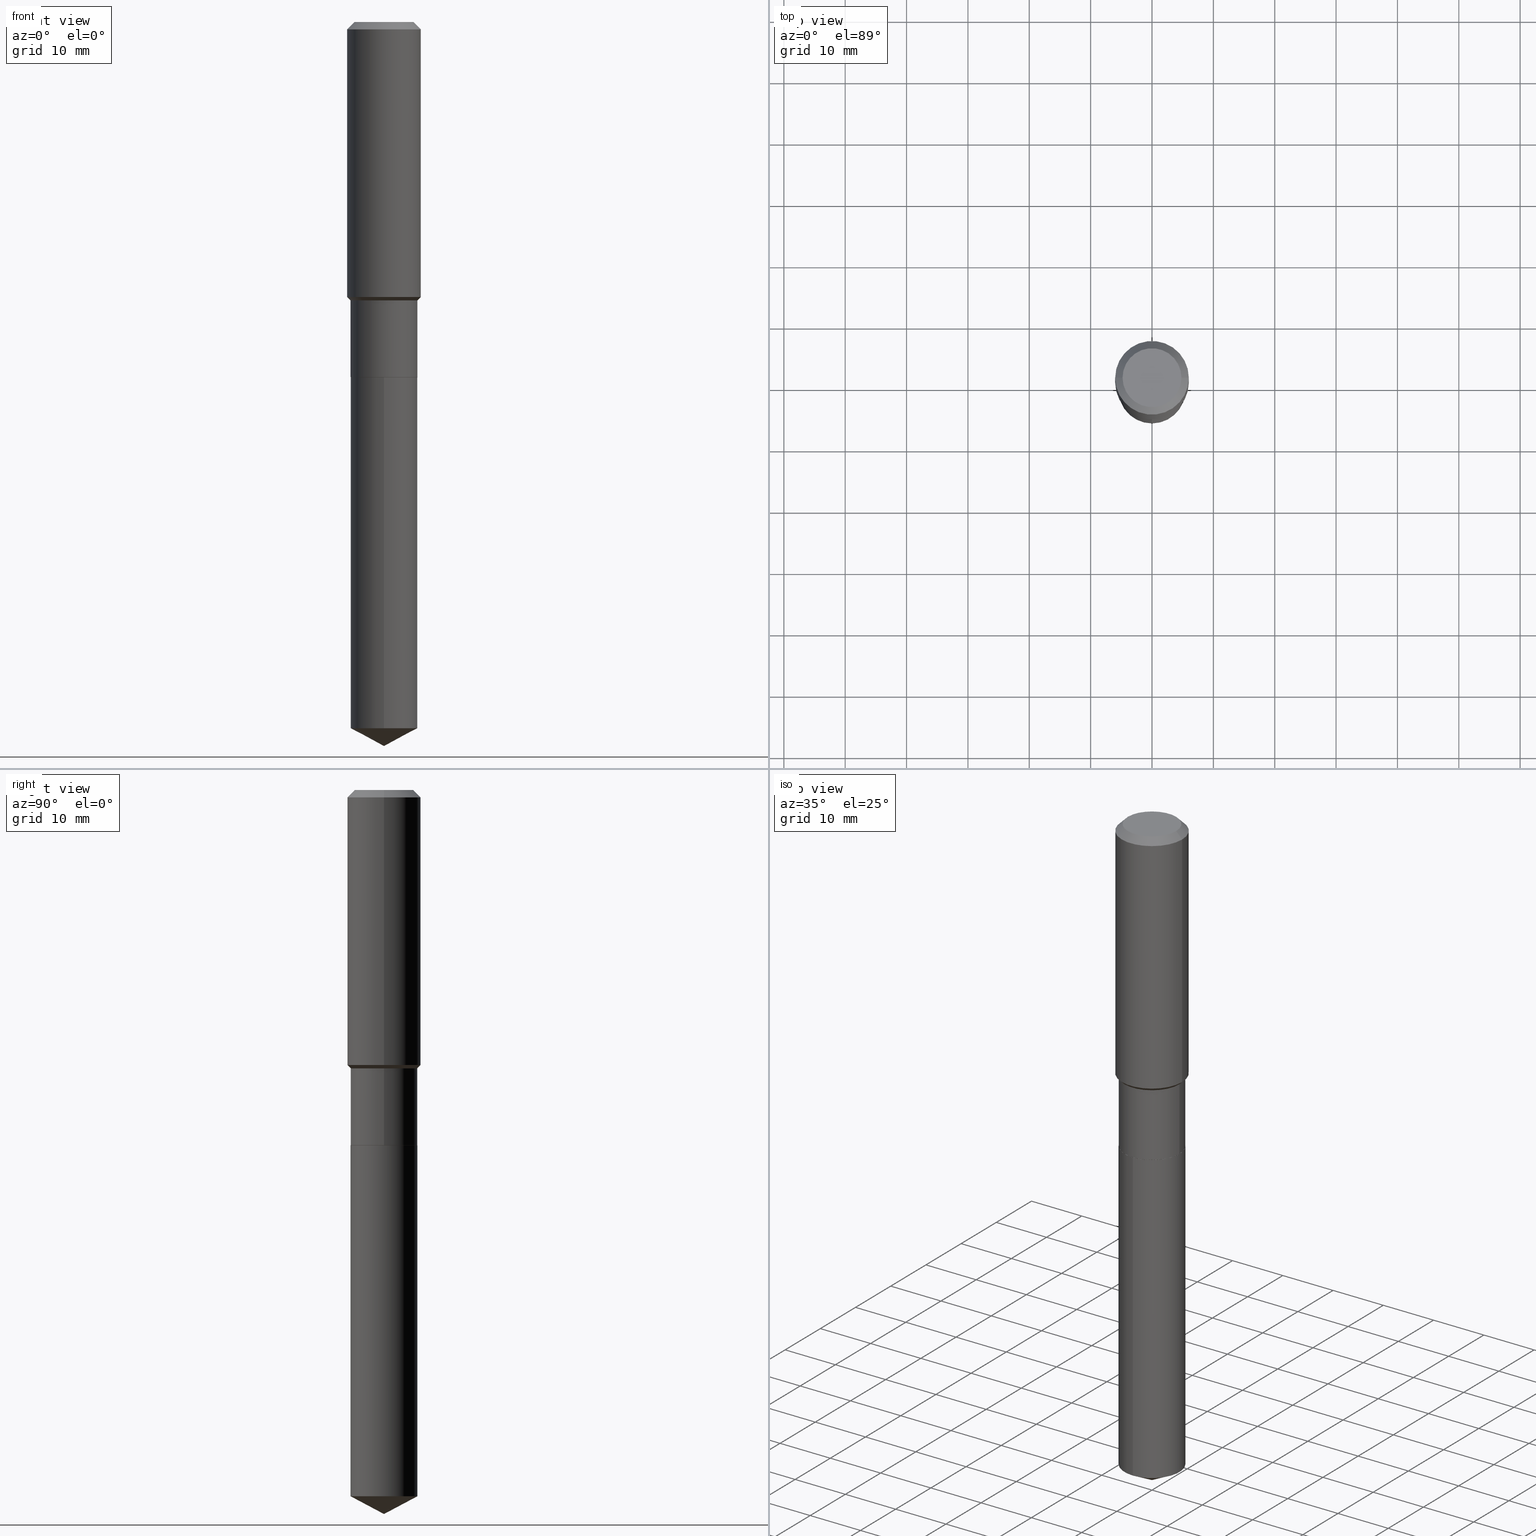
[diagram: canonical four-view strip — front | top / right | iso, engineering-drawing reading convention]
A machine part, canonical four-view strip (front | top / right | iso — engineering-drawing reading convention). The complete STEP part file that produces these views, byte-faithful:
ISO-10303-21;
HEADER;
FILE_DESCRIPTION (( 'STEP AP203' ),
    '1' );
FILE_NAME ('64879.STEP',
    '2024-04-24T19:28:28',
    ( '' ),
    ( '' ),
    'SwSTEP 2.0',
    'SolidWorks 2023',
    '' );
FILE_SCHEMA (( 'CONFIG_CONTROL_DESIGN' ));
ENDSEC;

DATA;
#1 = CARTESIAN_POINT ( 'NONE',  ( -9.427742298522546243E-47, 1.346031739168365344E-32, 3.855188123715862256E-18 ) ) ;
#2 = AXIS2_PLACEMENT_3D ( 'NONE', #235, #391, #195 ) ;
#3 = AXIS2_PLACEMENT_3D ( 'NONE', #178, #414, #329 ) ;
#4 = FACE_OUTER_BOUND ( 'NONE', #307, .T. ) ;
#5 = ORIENTED_EDGE ( 'NONE', *, *, #172, .T. ) ;
#6 = CC_DESIGN_PERSON_AND_ORGANIZATION_ASSIGNMENT ( #64, #370, ( #67 ) ) ;
#7 = ORIENTED_EDGE ( 'NONE', *, *, #442, .T. ) ;
#8 = FACE_OUTER_BOUND ( 'NONE', #317, .T. ) ;
#9 = APPROVAL_ROLE ( '' ) ;
#10 = VERTEX_POINT ( 'NONE', #303 ) ;
#11 = CIRCLE ( 'NONE', #153, 0.2140499999999999903 ) ;
#12 = DIRECTION ( 'NONE',  ( -2.445464104215688479E-29, 3.491488072331014766E-15, 1.000000000000000000 ) ) ;
#13 = LINE ( 'NONE', #211, #296 ) ;
#14 = ORIENTED_EDGE ( 'NONE', *, *, #290, .F. ) ;
#15 = PRODUCT_DEFINITION_SHAPE ( 'NONE', 'NONE',  #454 ) ;
#16 = CYLINDRICAL_SURFACE ( 'NONE', #308, 0.2362000000000001043 ) ;
#17 = CYLINDRICAL_SURFACE ( 'NONE', #269, 0.2145499999999999907 ) ;
#18 = ORIENTED_EDGE ( 'NONE', *, *, #480, .F. ) ;
#19 = CARTESIAN_POINT ( 'NONE',  ( 4.367607287846652814E-29, -6.235785671173856083E-15, -1.785999999999999366 ) ) ;
#20 = LINE ( 'NONE', #256, #262 ) ;
#21 = AXIS2_PLACEMENT_3D ( 'NONE', #239, #396, #51 ) ;
#22 = AXIS2_PLACEMENT_3D ( 'NONE', #162, #93, #397 ) ;
#23 = EDGE_CURVE ( 'NONE', #43, #90, #182, .T. ) ;
#24 = CARTESIAN_POINT ( 'NONE',  ( 0.2145499999999999907, -9.455280613721116027E-15, -2.278999999999999471 ) ) ;
#25 = CARTESIAN_POINT ( 'NONE',  ( 5.574446143699018056E-29, -7.958831711892947948E-15, -2.279499999999999638 ) ) ;
#26 = LINE ( 'NONE', #212, #302 ) ;
#27 = DIRECTION ( 'NONE',  ( 0.7071067811866199593, -2.468850131083015945E-15, 0.7071067811864750752 ) ) ;
#28 = PERSON_AND_ORGANIZATION ( #258, #136 ) ;
#29 = COORDINATED_UNIVERSAL_TIME_OFFSET ( 5, 0, .BEHIND. ) ;
#30 = CARTESIAN_POINT ( 'NONE',  ( 0.2145499999999999352, -7.733980313671444089E-15, -1.785999999999999366 ) ) ;
#31 = APPLICATION_PROTOCOL_DEFINITION ( 'international standard', 'config_control_design', 1994, #222 ) ;
#32 = EDGE_LOOP ( 'NONE', ( #417, #87, #351, #114 ) ) ;
#33 = CARTESIAN_POINT ( 'NONE',  ( 0.000000000000000000, 0.000000000000000000, 0.000000000000000000 ) ) ;
#34 = AXIS2_PLACEMENT_3D ( 'NONE', #46, #12, #123 ) ;
#35 = DIRECTION ( 'NONE',  ( -2.445464104215688479E-29, 3.491488072331014766E-15, 1.000000000000000000 ) ) ;
#36 = ADVANCED_FACE ( 'NONE', ( #76 ), #458, .F. ) ;
#37 = CARTESIAN_POINT ( 'NONE',  ( 4.314662888192743703E-29, -6.160195100187900640E-15, -1.764349999999999197 ) ) ;
#38 = CARTESIAN_POINT ( 'NONE',  ( 5.574446143699018056E-29, -7.958831711892947948E-15, -2.279499999999999638 ) ) ;
#39 = COORDINATED_UNIVERSAL_TIME_OFFSET ( 5, 0, .BEHIND. ) ;
#40 = AXIS2_PLACEMENT_3D ( 'NONE', #437, #92, #58 ) ;
#41 = ADVANCED_FACE ( 'NONE', ( #4 ), #215, .T. ) ;
#42 = DIRECTION ( 'NONE',  ( 1.000000000000000000, -6.982962677686266711E-15, 4.876185090822587894E-29 ) ) ;
#43 = VERTEX_POINT ( 'NONE', #225 ) ;
#44 = DIRECTION ( 'NONE',  ( -6.165590087286839185E-15, -0.8829475928589269884, 0.4694715627858906393 ) ) ;
#45 = ORIENTED_EDGE ( 'NONE', *, *, #442, .F. ) ;
#46 = CARTESIAN_POINT ( 'NONE',  ( 5.574446143699018056E-29, -7.958831711892947948E-15, -2.279499999999999638 ) ) ;
#47 = DIRECTION ( 'NONE',  ( -2.445468806185136877E-29, 3.491481338843145188E-15, 1.000000000000000000 ) ) ;
#48 = ORIENTED_EDGE ( 'NONE', *, *, #489, .F. ) ;
#49 = AXIS2_PLACEMENT_3D ( 'NONE', #205, #283, #321 ) ;
#50 =( GEOMETRIC_REPRESENTATION_CONTEXT ( 3 ) GLOBAL_UNCERTAINTY_ASSIGNED_CONTEXT ( ( #402 ) ) GLOBAL_UNIT_ASSIGNED_CONTEXT ( ( #488, #253, #447 ) ) REPRESENTATION_CONTEXT ( 'NONE', 'WORKASPACE' ) );
#51 = DIRECTION ( 'NONE',  ( -6.982962677686266711E-15, -1.000000000000000000, 3.819876010716751118E-15 ) ) ;
#52 = DIRECTION ( 'NONE',  ( -2.445468806185136877E-29, 3.491481338843145188E-15, 1.000000000000000000 ) ) ;
#53 = EDGE_LOOP ( 'NONE', ( #18, #227, #378, #273 ) ) ;
#54 = LINE ( 'NONE', #477, #464 ) ;
#55 = EDGE_CURVE ( 'NONE', #419, #80, #379, .T. ) ;
#56 = DIRECTION ( 'NONE',  ( 1.000000000000000000, -6.982962677686266711E-15, 4.876185090822587894E-29 ) ) ;
#57 = ADVANCED_FACE ( 'NONE', ( #259 ), #111, .F. ) ;
#58 = DIRECTION ( 'NONE',  ( 1.000000000000000000, -6.982962677686266711E-15, 0.000000000000000000 ) ) ;
#59 = LINE ( 'NONE', #275, #353 ) ;
#60 = VECTOR ( 'NONE', #197, 39.37007874015748143 ) ;
#61 = PRODUCT_RELATED_PRODUCT_CATEGORY ( 'detail', '', ( #158 ) ) ;
#62 = CARTESIAN_POINT ( 'NONE',  ( 0.000000000000000000, 0.000000000000000000, 0.000000000000000000 ) ) ;
#63 = DIRECTION ( 'NONE',  ( 1.000000000000000000, -6.982962677686266711E-15, 0.000000000000000000 ) ) ;
#64 = PERSON_AND_ORGANIZATION ( #258, #136 ) ;
#65 = AXIS2_PLACEMENT_3D ( 'NONE', #150, #306, #223 ) ;
#66 = AXIS2_PLACEMENT_3D ( 'NONE', #272, #152, #157 ) ;
#67 = SECURITY_CLASSIFICATION ( '', '', #409 ) ;
#68 = APPROVAL_PERSON_ORGANIZATION ( #333, #384, #183 ) ;
#69 = FACE_OUTER_BOUND ( 'NONE', #237, .T. ) ;
#70 = APPROVAL_STATUS ( 'not_yet_approved' ) ;
#71 = EDGE_CURVE ( 'NONE', #80, #419, #334, .T. ) ;
#72 = CARTESIAN_POINT ( 'NONE',  ( -1.498194642497477368E-15, -0.2145500000000157836, -4.531621741437029449 ) ) ;
#73 = AXIS2_PLACEMENT_3D ( 'NONE', #62, #374, #408 ) ;
#74 = ORIENTED_EDGE ( 'NONE', *, *, #71, .T. ) ;
#75 = VERTEX_POINT ( 'NONE', #187 ) ;
#76 = FACE_OUTER_BOUND ( 'NONE', #77, .T. ) ;
#77 = EDGE_LOOP ( 'NONE', ( #394, #427 ) ) ;
#78 = CALENDAR_DATE ( 2024, 24, 4 ) ;
#79 = CIRCLE ( 'NONE', #418, 0.1889600000000000168 ) ;
#80 = VERTEX_POINT ( 'NONE', #299 ) ;
#81 = CC_DESIGN_APPROVAL ( #384, ( #454 ) ) ;
#82 = LINE ( 'NONE', #200, #330 ) ;
#83 = VERTEX_POINT ( 'NONE', #72 ) ;
#84 = EDGE_CURVE ( 'NONE', #218, #436, #481, .T. ) ;
#85 = EDGE_CURVE ( 'NONE', #90, #490, #145, .T. ) ;
#86 = DIRECTION ( 'NONE',  ( 1.000000000000000000, -6.982962677686269077E-15, 0.000000000000000000 ) ) ;
#87 = ORIENTED_EDGE ( 'NONE', *, *, #238, .T. ) ;
#88 = CARTESIAN_POINT ( 'NONE',  ( 0.2145499999999999352, -7.733980313671444089E-15, -1.785999999999999366 ) ) ;
#89 = LINE ( 'NONE', #170, #457 ) ;
#90 = VERTEX_POINT ( 'NONE', #381 ) ;
#91 = CIRCLE ( 'NONE', #147, 0.2140499999999999903 ) ;
#92 = DIRECTION ( 'NONE',  ( -2.445468806185136597E-29, 3.491481338843145583E-15, 1.000000000000000000 ) ) ;
#93 = DIRECTION ( 'NONE',  ( -2.445464104215688479E-29, 3.491488072331014766E-15, 1.000000000000000000 ) ) ;
#94 = FACE_OUTER_BOUND ( 'NONE', #423, .T. ) ;
#95 = FACE_OUTER_BOUND ( 'NONE', #32, .T. ) ;
#96 = CC_DESIGN_DATE_AND_TIME_ASSIGNMENT ( #257, #252, ( #454 ) ) ;
#97 = CYLINDRICAL_SURFACE ( 'NONE', #73, 0.2145499999999999630 ) ;
#98 = CARTESIAN_POINT ( 'NONE',  ( 1.155239464041865506E-30, -1.649375784469511859E-16, -0.04724000000000028177 ) ) ;
#99 = AXIS2_PLACEMENT_3D ( 'NONE', #247, #128, #403 ) ;
#100 = PERSON_AND_ORGANIZATION ( #258, #136 ) ;
#101 = ADVANCED_FACE ( 'NONE', ( #339 ), #166, .T. ) ;
#102 = MECHANICAL_CONTEXT ( 'NONE', #222, 'mechanical' ) ;
#103 = DIRECTION ( 'NONE',  ( 2.438088387897960049E-29, -3.491481338843145188E-15, -1.000000000000000000 ) ) ;
#104 = AXIS2_PLACEMENT_3D ( 'NONE', #19, #475, #363 ) ;
#105 = VECTOR ( 'NONE', #431, 39.37007874015748143 ) ;
#106 = PERSON_AND_ORGANIZATION_ROLE ( 'creator' ) ;
#107 = PERSON_AND_ORGANIZATION ( #258, #136 ) ;
#108 = CARTESIAN_POINT ( 'NONE',  ( 5.574446143699018056E-29, -7.958831711892947948E-15, -2.279499999999999638 ) ) ;
#109 = ORIENTED_EDGE ( 'NONE', *, *, #290, .T. ) ;
#110 = VERTEX_POINT ( 'NONE', #357 ) ;
#111 = PLANE ( 'NONE',  #240 ) ;
#112 = ORIENTED_EDGE ( 'NONE', *, *, #85, .T. ) ;
#113 = ADVANCED_FACE ( 'NONE', ( #161 ), #322, .T. ) ;
#114 = ORIENTED_EDGE ( 'NONE', *, *, #155, .F. ) ;
#115 = AXIS2_PLACEMENT_3D ( 'NONE', #316, #469, #121 ) ;
#116 = ORIENTED_EDGE ( 'NONE', *, *, #342, .F. ) ;
#117 = CC_DESIGN_APPROVAL ( #224, ( #67 ) ) ;
#118 = FACE_OUTER_BOUND ( 'NONE', #163, .T. ) ;
#119 = EDGE_LOOP ( 'NONE', ( #146, #320 ) ) ;
#120 = CARTESIAN_POINT ( 'NONE',  ( -0.2361999999999999933, -1.484264397452068200E-15, -0.04724000000000028177 ) ) ;
#121 = DIRECTION ( 'NONE',  ( -6.982962677686266711E-15, -1.000000000000000000, 2.546584007144500745E-15 ) ) ;
#122 = VERTEX_POINT ( 'NONE', #430 ) ;
#123 = DIRECTION ( 'NONE',  ( -6.982962677686266711E-15, -1.000000000000000000, 3.819876010716751118E-15 ) ) ;
#124 = DIRECTION ( 'NONE',  ( -2.445464104215688479E-29, 3.491488072331014766E-15, 1.000000000000000000 ) ) ;
#125 = ORIENTED_EDGE ( 'NONE', *, *, #484, .F. ) ;
#126 = CONICAL_SURFACE ( 'NONE', #2, 0.2145499999999999352, 0.7853981633974473908 ) ;
#127 = EDGE_CURVE ( 'NONE', #10, #75, #254, .T. ) ;
#128 = DIRECTION ( 'NONE',  ( 2.445468806185136597E-29, -3.491481338843145583E-15, -1.000000000000000000 ) ) ;
#129 = DIRECTION ( 'NONE',  ( -6.982962677686266711E-15, -1.000000000000000000, 3.819876010716751118E-15 ) ) ;
#130 = DIRECTION ( 'NONE',  ( -2.445468806185136597E-29, 3.491481338843145583E-15, 1.000000000000000000 ) ) ;
#131 = CYLINDRICAL_SURFACE ( 'NONE', #433, 0.2145499999999999630 ) ;
#132 = DIRECTION ( 'NONE',  ( -1.000000000000000000, 6.982962677686265922E-15, -4.876176775795935793E-29 ) ) ;
#133 = CARTESIAN_POINT ( 'NONE',  ( 5.574446143699018056E-29, -7.958831711892947948E-15, -2.279499999999999638 ) ) ;
#134 = VECTOR ( 'NONE', #487, 39.37007874015748143 ) ;
#135 = CONICAL_SURFACE ( 'NONE', #22, 74.04434902938382379, 1.082104136236488046 ) ;
#136 = ORGANIZATION ( 'UNSPECIFIED', 'UNSPECIFIED', '' ) ;
#137 = CALENDAR_DATE ( 2024, 24, 4 ) ;
#138 = EDGE_CURVE ( 'NONE', #474, #83, #466, .T. ) ;
#139 = AXIS2_PLACEMENT_3D ( 'NONE', #318, #130, #472 ) ;
#140 = VECTOR ( 'NONE', #204, 39.37007874015748143 ) ;
#141 = APPLICATION_PROTOCOL_DEFINITION ( 'international standard', 'config_control_design', 1994, #446 ) ;
#142 = EDGE_CURVE ( 'NONE', #490, #90, #448, .T. ) ;
#143 = CARTESIAN_POINT ( 'NONE',  ( 4.314662888192743703E-29, -6.160195100187900640E-15, -1.764349999999999197 ) ) ;
#144 = CARTESIAN_POINT ( 'NONE',  ( -0.2145499999999999630, 1.524469439573294686E-15, -1.055357523614189967E-29 ) ) ;
#145 = CIRCLE ( 'NONE', #65, 0.2145499999999999352 ) ;
#146 = ORIENTED_EDGE ( 'NONE', *, *, #127, .T. ) ;
#147 = AXIS2_PLACEMENT_3D ( 'NONE', #25, #478, #63 ) ;
#148 = DIRECTION ( 'NONE',  ( -2.445468806185136597E-29, 3.491481338843145583E-15, 1.000000000000000000 ) ) ;
#149 = VERTEX_POINT ( 'NONE', #24 ) ;
#150 = CARTESIAN_POINT ( 'NONE',  ( 4.367607287846652814E-29, -6.235785671173856083E-15, -1.785999999999999366 ) ) ;
#151 = EDGE_LOOP ( 'NONE', ( #234, #202, #388, #345 ) ) ;
#152 = DIRECTION ( 'NONE',  ( -2.445468806185136597E-29, 3.491481338843145583E-15, 1.000000000000000000 ) ) ;
#153 = AXIS2_PLACEMENT_3D ( 'NONE', #133, #279, #325 ) ;
#154 = ORIENTED_EDGE ( 'NONE', *, *, #55, .F. ) ;
#155 = EDGE_CURVE ( 'NONE', #75, #10, #209, .T. ) ;
#156 = LOCAL_TIME ( 15, 28, 28.00000000000000000, #39 ) ;
#157 = DIRECTION ( 'NONE',  ( 1.000000000000000000, -6.982962677686266711E-15, 4.876176775795935793E-29 ) ) ;
#158 = PRODUCT ( '64879', '64879', '', ( #102 ) ) ;
#159 = CARTESIAN_POINT ( 'NONE',  ( -1.498194642497532588E-15, -0.2145500000000079566, -2.279499999999998749 ) ) ;
#160 = ORIENTED_EDGE ( 'NONE', *, *, #471, .T. ) ;
#161 = FACE_OUTER_BOUND ( 'NONE', #398, .T. ) ;
#162 = CARTESIAN_POINT ( 'NONE',  ( -8.491721103210614616E-28, 1.212397695393501143E-13, 34.72437874015748349 ) ) ;
#163 = EDGE_LOOP ( 'NONE', ( #305, #191, #192, #48 ) ) ;
#164 = DIRECTION ( 'NONE',  ( 1.000000000000000000, -6.982962677686266711E-15, 4.876176775795935793E-29 ) ) ;
#165 = DIRECTION ( 'NONE',  ( -2.445464104215688479E-29, 3.491488072331014766E-15, 1.000000000000000000 ) ) ;
#166 = CONICAL_SURFACE ( 'NONE', #410, 74.04434902938382379, 1.082104136236488046 ) ;
#167 = AXIS2_PLACEMENT_3D ( 'NONE', #476, #165, #444 ) ;
#168 = LOCAL_TIME ( 15, 28, 28.00000000000000000, #289 ) ;
#169 = LINE ( 'NONE', #88, #450 ) ;
#170 = CARTESIAN_POINT ( 'NONE',  ( 0.2362000000000001043, -1.649375784469496920E-15, 1.151752954443000508E-29 ) ) ;
#171 = DIRECTION ( 'NONE',  ( 1.000000000000000000, -6.982962677686269077E-15, 0.000000000000000000 ) ) ;
#172 = EDGE_CURVE ( 'NONE', #490, #80, #169, .T. ) ;
#173 = CARTESIAN_POINT ( 'NONE',  ( -4.713871149261273121E-47, 6.730158695841826722E-33, 1.927594061857931128E-18 ) ) ;
#174 = PERSON_AND_ORGANIZATION_ROLE ( 'design_supplier' ) ;
#175 = CIRCLE ( 'NONE', #343, 0.2145499999999999907 ) ;
#176 = PLANE ( 'NONE',  #188 ) ;
#177 = PERSON_AND_ORGANIZATION ( #258, #136 ) ;
#178 = CARTESIAN_POINT ( 'NONE',  ( 1.155239464041865506E-30, -1.649375784469511859E-16, -0.04724000000000028177 ) ) ;
#179 = EDGE_CURVE ( 'NONE', #218, #230, #54, .T. ) ;
#180 = DATE_AND_TIME ( #137, #331 ) ;
#181 = ORIENTED_EDGE ( 'NONE', *, *, #238, .F. ) ;
#182 = LINE ( 'NONE', #144, #134 ) ;
#183 = APPROVAL_ROLE ( '' ) ;
#184 = EDGE_LOOP ( 'NONE', ( #74, #160, #452, #312 ) ) ;
#185 = CALENDAR_DATE ( 2024, 24, 4 ) ;
#186 = APPROVAL ( #70, 'UNSPECIFIED' ) ;
#187 = CARTESIAN_POINT ( 'NONE',  ( 1.524469439573405915E-15, 0.2145499999999920249, -2.279500000000000526 ) ) ;
#188 = AXIS2_PLACEMENT_3D ( 'NONE', #173, #103, #132 ) ;
#189 = EDGE_LOOP ( 'NONE', ( #415, #426 ) ) ;
#190 = APPROVAL_STATUS ( 'not_yet_approved' ) ;
#191 = ORIENTED_EDGE ( 'NONE', *, *, #55, .T. ) ;
#192 = ORIENTED_EDGE ( 'NONE', *, *, #392, .T. ) ;
#193 = FACE_OUTER_BOUND ( 'NONE', #184, .T. ) ;
#194 = ORIENTED_EDGE ( 'NONE', *, *, #23, .F. ) ;
#195 = DIRECTION ( 'NONE',  ( 1.000000000000000000, -6.982962677686266711E-15, 0.000000000000000000 ) ) ;
#196 = AXIS2_PLACEMENT_3D ( 'NONE', #38, #416, #301 ) ;
#197 = DIRECTION ( 'NONE',  ( -2.445464104215688759E-29, 3.491488072331014766E-15, 1.000000000000000000 ) ) ;
#198 = CONICAL_SURFACE ( 'NONE', #99, 0.2361999999999999933, 0.7853981633974452814 ) ;
#199 = EDGE_LOOP ( 'NONE', ( #265, #432, #356, #219 ) ) ;
#200 = CARTESIAN_POINT ( 'NONE',  ( 1.524469439573350498E-15, 0.2145499999999920526, -2.279500000000000526 ) ) ;
#201 = CARTESIAN_POINT ( 'NONE',  ( -9.427742298522546243E-47, 1.346031739168365344E-32, 3.855188123715862256E-18 ) ) ;
#202 = ORIENTED_EDGE ( 'NONE', *, *, #350, .T. ) ;
#203 = DIRECTION ( 'NONE',  ( -2.445464104215688759E-29, 3.491488072331014766E-15, 1.000000000000000000 ) ) ;
#204 = DIRECTION ( 'NONE',  ( -0.7071067811866199593, 7.493145998870616062E-15, 0.7071067811864750752 ) ) ;
#205 = CARTESIAN_POINT ( 'NONE',  ( 1.108192902070700221E-28, -1.582208790955769543E-14, -4.531621741437030337 ) ) ;
#206 = CARTESIAN_POINT ( 'NONE',  ( 5.574446143699018056E-29, -7.958831711892947948E-15, -2.279499999999999638 ) ) ;
#207 = ADVANCED_FACE ( 'NONE', ( #8 ), #255, .T. ) ;
#208 = AXIS2_PLACEMENT_3D ( 'NONE', #143, #148, #382 ) ;
#209 = CIRCLE ( 'NONE', #34, 0.2145499999999999907 ) ;
#210 = EDGE_CURVE ( 'NONE', #149, #490, #434, .T. ) ;
#211 = CARTESIAN_POINT ( 'NONE',  ( 0.2140499999999999903, -9.453534873051693735E-15, -2.279499999999999638 ) ) ;
#212 = CARTESIAN_POINT ( 'NONE',  ( 0.2361999999999999933, -1.785387205520586782E-15, -0.04724000000000028177 ) ) ;
#213 =( LENGTH_UNIT ( ) NAMED_UNIT ( * ) SI_UNIT ( $, .METRE. ) );
#214 = APPROVAL_STATUS ( 'not_yet_approved' ) ;
#215 = CONICAL_SURFACE ( 'NONE', #196, 0.2140499999999999903, 0.7853981633975507526 ) ;
#216 = CIRCLE ( 'NONE', #115, 0.2145499999999999907 ) ;
#217 = CALENDAR_DATE ( 2024, 24, 4 ) ;
#218 = VERTEX_POINT ( 'NONE', #285 ) ;
#219 = ORIENTED_EDGE ( 'NONE', *, *, #399, .F. ) ;
#220 = PERSON_AND_ORGANIZATION_ROLE ( 'design_owner' ) ;
#221 = EDGE_CURVE ( 'NONE', #110, #75, #82, .T. ) ;
#222 = APPLICATION_CONTEXT ( 'configuration controlled 3d designs of mechanical parts and assemblies' ) ;
#223 = DIRECTION ( 'NONE',  ( 1.000000000000000000, -6.982962677686266711E-15, 0.000000000000000000 ) ) ;
#224 = APPROVAL ( #190, 'UNSPECIFIED' ) ;
#225 = CARTESIAN_POINT ( 'NONE',  ( -0.2145499999999999907, -5.571966381625396973E-15, -2.278999999999999471 ) ) ;
#226 = PERSON_AND_ORGANIZATION ( #258, #136 ) ;
#227 = ORIENTED_EDGE ( 'NONE', *, *, #314, .T. ) ;
#228 = EDGE_LOOP ( 'NONE', ( #348, #280, #267 ) ) ;
#229 = CIRCLE ( 'NONE', #372, 0.2361999999999999933 ) ;
#230 = VERTEX_POINT ( 'NONE', #120 ) ;
#231 = ORIENTED_EDGE ( 'NONE', *, *, #210, .T. ) ;
#232 = ADVANCED_FACE ( 'NONE', ( #118 ), #16, .T. ) ;
#233 = CARTESIAN_POINT ( 'NONE',  ( 0.2140499999999999903, -9.453534873051693735E-15, -2.279499999999999638 ) ) ;
#234 = ORIENTED_EDGE ( 'NONE', *, *, #142, .T. ) ;
#235 = CARTESIAN_POINT ( 'NONE',  ( 4.367607287846652814E-29, -6.235785671173856083E-15, -1.785999999999999366 ) ) ;
#236 = DIRECTION ( 'NONE',  ( 1.000000000000000000, -6.982962677686266711E-15, 0.000000000000000000 ) ) ;
#237 = EDGE_LOOP ( 'NONE', ( #194, #263, #231, #336 ) ) ;
#238 = EDGE_CURVE ( 'NONE', #110, #83, #443, .T. ) ;
#239 = CARTESIAN_POINT ( 'NONE',  ( 5.574446143699018056E-29, -7.958831711892947948E-15, -2.279499999999999638 ) ) ;
#240 = AXIS2_PLACEMENT_3D ( 'NONE', #455, #266, #422 ) ;
#241 = CARTESIAN_POINT ( 'NONE',  ( 1.136089258895482258E-28, -1.622040613762819377E-14, -4.645699999999999719 ) ) ;
#242 = CONICAL_SURFACE ( 'NONE', #250, 0.2361999999999999933, 0.7853981633974452814 ) ;
#243 = ORIENTED_EDGE ( 'NONE', *, *, #328, .T. ) ;
#244 = AXIS2_PLACEMENT_3D ( 'NONE', #33, #445, #411 ) ;
#245 = CARTESIAN_POINT ( 'NONE',  ( 0.000000000000000000, 0.000000000000000000, 0.000000000000000000 ) ) ;
#246 = CARTESIAN_POINT ( 'NONE',  ( 0.1889600000000000168, -1.540873453589747738E-15, 3.855188123725863225E-18 ) ) ;
#247 = CARTESIAN_POINT ( 'NONE',  ( 1.155239464041865506E-30, -1.649375784469511859E-16, -0.04724000000000028177 ) ) ;
#248 = CARTESIAN_POINT ( 'NONE',  ( 0.000000000000000000, 0.000000000000000000, 0.000000000000000000 ) ) ;
#249 = ADVANCED_FACE ( 'NONE', ( #94 ), #198, .T. ) ;
#250 = AXIS2_PLACEMENT_3D ( 'NONE', #98, #361, #323 ) ;
#251 = COORDINATED_UNIVERSAL_TIME_OFFSET ( 5, 0, .BEHIND. ) ;
#252 = DATE_TIME_ROLE ( 'creation_date' ) ;
#253 =( NAMED_UNIT ( * ) PLANE_ANGLE_UNIT ( ) SI_UNIT ( $, .RADIAN. ) );
#254 = CIRCLE ( 'NONE', #21, 0.2145499999999999907 ) ;
#255 = CONICAL_SURFACE ( 'NONE', #40, 0.2140499999999999903, 0.7853981633975507526 ) ;
#256 = CARTESIAN_POINT ( 'NONE',  ( 1.136091421320439841E-28, -1.622037543965699809E-14, -4.645699999999999719 ) ) ;
#257 = DATE_AND_TIME ( #217, #168 ) ;
#258 = PERSON ( 'UNSPECIFIED', 'UNSPECIFIED', 'UNSPECIFIED', ('UNSPECIFIED'), ('UNSPECIFIED'), ('UNSPECIFIED') ) ;
#259 = FACE_OUTER_BOUND ( 'NONE', #119, .T. ) ;
#260 = DATE_AND_TIME ( #185, #156 ) ;
#261 = VERTEX_POINT ( 'NONE', #233 ) ;
#262 = VECTOR ( 'NONE', #485, 39.37007874015748143 ) ;
#263 = ORIENTED_EDGE ( 'NONE', *, *, #342, .T. ) ;
#264 = MANIFOLD_SOLID_BREP ( 'Body-Move/Copy2[1]', #295 ) ;
#265 = ORIENTED_EDGE ( 'NONE', *, *, #451, .T. ) ;
#266 = DIRECTION ( 'NONE',  ( 2.445464104215688199E-29, -3.491488072331014766E-15, -1.000000000000000000 ) ) ;
#267 = ORIENTED_EDGE ( 'NONE', *, *, #451, .F. ) ;
#268 = CC_DESIGN_DATE_AND_TIME_ASSIGNMENT ( #453, #460, ( #67 ) ) ;
#269 = AXIS2_PLACEMENT_3D ( 'NONE', #206, #124, #129 ) ;
#270 = ORIENTED_EDGE ( 'NONE', *, *, #210, .F. ) ;
#271 = ORIENTED_EDGE ( 'NONE', *, *, #179, .T. ) ;
#272 = CARTESIAN_POINT ( 'NONE',  ( 0.000000000000000000, 0.000000000000000000, 0.000000000000000000 ) ) ;
#273 = ORIENTED_EDGE ( 'NONE', *, *, #179, .F. ) ;
#274 = FACE_OUTER_BOUND ( 'NONE', #151, .T. ) ;
#275 = CARTESIAN_POINT ( 'NONE',  ( -0.2362000000000001043, 1.678301941865357380E-15, -1.161852468318209317E-29 ) ) ;
#276 = EDGE_LOOP ( 'NONE', ( #109, #335, #461, #270 ) ) ;
#277 = DIRECTION ( 'NONE',  ( -0.7071067811865453523, 2.468850131082234184E-15, -0.7071067811865496822 ) ) ;
#278 = CLOSED_SHELL ( 'NONE', ( #207, #326, #282, #291, #424, #313, #113, #232, #249, #292, #36, #41 ) ) ;
#279 = DIRECTION ( 'NONE',  ( -2.445468806185136597E-29, 3.491481338843145583E-15, 1.000000000000000000 ) ) ;
#280 = ORIENTED_EDGE ( 'NONE', *, *, #484, .T. ) ;
#281 = LOCAL_TIME ( 15, 28, 28.00000000000000000, #337 ) ;
#282 = ADVANCED_FACE ( 'NONE', ( #193 ), #349, .T. ) ;
#283 = DIRECTION ( 'NONE',  ( -2.445464104215688479E-29, 3.491488072331014766E-15, 1.000000000000000000 ) ) ;
#284 = LINE ( 'NONE', #159, #60 ) ;
#285 = CARTESIAN_POINT ( 'NONE',  ( -0.1889600000000000168, 1.401969416799070942E-15, 3.855188123706346622E-18 ) ) ;
#286 = DIRECTION ( 'NONE',  ( -2.445468806185136597E-29, 3.491481338843145583E-15, 1.000000000000000000 ) ) ;
#287 = FACE_OUTER_BOUND ( 'NONE', #199, .T. ) ;
#288 = AXIS2_PLACEMENT_3D ( 'NONE', #327, #393, #171 ) ;
#289 = COORDINATED_UNIVERSAL_TIME_OFFSET ( 5, 0, .BEHIND. ) ;
#290 = EDGE_CURVE ( 'NONE', #149, #43, #175, .T. ) ;
#291 = ADVANCED_FACE ( 'NONE', ( #274 ), #126, .T. ) ;
#292 = ADVANCED_FACE ( 'NONE', ( #354 ), #176, .F. ) ;
#293 = CC_DESIGN_PERSON_AND_ORGANIZATION_ASSIGNMENT ( #107, #106, ( #454 ) ) ;
#294 = DATE_AND_TIME ( #407, #281 ) ;
#295 = CLOSED_SHELL ( 'NONE', ( #367, #406, #101, #373, #57 ) ) ;
#296 = VECTOR ( 'NONE', #27, 39.37007874015748143 ) ;
#297 = APPROVAL_PERSON_ORGANIZATION ( #100, #186, #375 ) ;
#298 = APPROVAL_DATE_TIME ( #180, #384 ) ;
#299 = CARTESIAN_POINT ( 'NONE',  ( 0.2362000000000002153, -7.809570884657398743E-15, -1.764349999999999197 ) ) ;
#300 = CC_DESIGN_PERSON_AND_ORGANIZATION_ASSIGNMENT ( #177, #220, ( #158 ) ) ;
#301 = DIRECTION ( 'NONE',  ( 1.000000000000000000, -6.982962677686266711E-15, 0.000000000000000000 ) ) ;
#302 = VECTOR ( 'NONE', #368, 39.37007874015748143 ) ;
#303 = CARTESIAN_POINT ( 'NONE',  ( -1.498194642497532588E-15, -0.2145500000000079566, -2.279499999999998749 ) ) ;
#304 = ORIENTED_EDGE ( 'NONE', *, *, #350, .F. ) ;
#305 = ORIENTED_EDGE ( 'NONE', *, *, #471, .F. ) ;
#306 = DIRECTION ( 'NONE',  ( -2.445468806185136597E-29, 3.491481338843145583E-15, 1.000000000000000000 ) ) ;
#307 = EDGE_LOOP ( 'NONE', ( #359, #243, #7, #116 ) ) ;
#308 = AXIS2_PLACEMENT_3D ( 'NONE', #245, #389, #164 ) ;
#309 = DIRECTION ( 'NONE',  ( -2.445468806185136597E-29, 3.491481338843145583E-15, 1.000000000000000000 ) ) ;
#310 = CC_DESIGN_SECURITY_CLASSIFICATION ( #67, ( #413 ) ) ;
#311 = FACE_OUTER_BOUND ( 'NONE', #53, .T. ) ;
#312 = ORIENTED_EDGE ( 'NONE', *, *, #392, .F. ) ;
#313 = ADVANCED_FACE ( 'NONE', ( #69 ), #97, .T. ) ;
#314 = EDGE_CURVE ( 'NONE', #436, #390, #26, .T. ) ;
#315 = CARTESIAN_POINT ( 'NONE',  ( 5.573223409295925255E-29, -7.957085971223527233E-15, -2.278999999999999471 ) ) ;
#316 = CARTESIAN_POINT ( 'NONE',  ( 1.108192902070700221E-28, -1.582208790955769543E-14, -4.531621741437030337 ) ) ;
#317 = EDGE_LOOP ( 'NONE', ( #420, #346, #14, #45 ) ) ;
#318 = CARTESIAN_POINT ( 'NONE',  ( 4.367607287846652814E-29, -6.235785671173856083E-15, -1.785999999999999366 ) ) ;
#319 = DIRECTION ( 'NONE',  ( -2.445468806185136597E-29, 3.491481338843145583E-15, 1.000000000000000000 ) ) ;
#320 = ORIENTED_EDGE ( 'NONE', *, *, #155, .T. ) ;
#321 = DIRECTION ( 'NONE',  ( -6.982962677686266711E-15, -1.000000000000000000, 2.546584007144500745E-15 ) ) ;
#322 = CONICAL_SURFACE ( 'NONE', #104, 0.2145499999999999352, 0.7853981633974473908 ) ;
#323 = DIRECTION ( 'NONE',  ( -1.000000000000000000, 6.982962677686266711E-15, 0.000000000000000000 ) ) ;
#324 = DIRECTION ( 'NONE',  ( 0.7071067811865469066, -2.468850131082250355E-15, 0.7071067811865481278 ) ) ;
#325 = DIRECTION ( 'NONE',  ( 1.000000000000000000, -6.982962677686266711E-15, 0.000000000000000000 ) ) ;
#326 = ADVANCED_FACE ( 'NONE', ( #311 ), #242, .T. ) ;
#327 = CARTESIAN_POINT ( 'NONE',  ( 5.573223409295925255E-29, -7.957085971223527233E-15, -2.278999999999999471 ) ) ;
#328 = EDGE_CURVE ( 'NONE', #122, #261, #11, .T. ) ;
#329 = DIRECTION ( 'NONE',  ( 1.000000000000000000, -6.982962677686266711E-15, 0.000000000000000000 ) ) ;
#330 = VECTOR ( 'NONE', #203, 39.37007874015748143 ) ;
#331 = LOCAL_TIME ( 15, 28, 28.00000000000000000, #251 ) ;
#332 = PERSON_AND_ORGANIZATION ( #258, #136 ) ;
#333 = PERSON_AND_ORGANIZATION ( #258, #136 ) ;
#334 = CIRCLE ( 'NONE', #352, 0.2362000000000002153 ) ;
#335 = ORIENTED_EDGE ( 'NONE', *, *, #23, .T. ) ;
#336 = ORIENTED_EDGE ( 'NONE', *, *, #85, .F. ) ;
#337 = COORDINATED_UNIVERSAL_TIME_OFFSET ( 5, 0, .BEHIND. ) ;
#338 = CC_DESIGN_PERSON_AND_ORGANIZATION_ASSIGNMENT ( #332, #369, ( #413 ) ) ;
#339 = FACE_OUTER_BOUND ( 'NONE', #429, .T. ) ;
#340 = SHAPE_DEFINITION_REPRESENTATION ( #15, #365 ) ;
#341 = DIRECTION ( 'NONE',  ( 1.000000000000000000, -6.982962677686266711E-15, 0.000000000000000000 ) ) ;
#342 = EDGE_CURVE ( 'NONE', #43, #149, #380, .T. ) ;
#343 = AXIS2_PLACEMENT_3D ( 'NONE', #315, #309, #86 ) ;
#344 = LOCAL_TIME ( 15, 28, 28.00000000000000000, #29 ) ;
#345 = ORIENTED_EDGE ( 'NONE', *, *, #172, .F. ) ;
#346 = ORIENTED_EDGE ( 'NONE', *, *, #483, .T. ) ;
#347 = DIRECTION ( 'NONE',  ( -2.445468806185136597E-29, 3.491481338843145583E-15, 1.000000000000000000 ) ) ;
#348 = ORIENTED_EDGE ( 'NONE', *, *, #138, .F. ) ;
#349 = CYLINDRICAL_SURFACE ( 'NONE', #66, 0.2362000000000001043 ) ;
#350 = EDGE_CURVE ( 'NONE', #90, #419, #358, .T. ) ;
#351 = ORIENTED_EDGE ( 'NONE', *, *, #399, .T. ) ;
#352 = AXIS2_PLACEMENT_3D ( 'NONE', #37, #347, #341 ) ;
#353 = VECTOR ( 'NONE', #52, 39.37007874015748143 ) ;
#354 = FACE_OUTER_BOUND ( 'NONE', #189, .T. ) ;
#355 = DIRECTION ( 'NONE',  ( 1.000000000000000000, -6.982962677686266711E-15, 4.876176775795936353E-29 ) ) ;
#356 = ORIENTED_EDGE ( 'NONE', *, *, #127, .F. ) ;
#357 = CARTESIAN_POINT ( 'NONE',  ( 1.524469439573405126E-15, 0.2145499999999841700, -4.531621741437031226 ) ) ;
#358 = LINE ( 'NONE', #479, #105 ) ;
#359 = ORIENTED_EDGE ( 'NONE', *, *, #483, .F. ) ;
#360 = DIRECTION ( 'NONE',  ( -6.982962677686264344E-15, -1.000000000000000000, 3.541896320645547064E-15 ) ) ;
#361 = DIRECTION ( 'NONE',  ( 2.445468806185136597E-29, -3.491481338843145583E-15, -1.000000000000000000 ) ) ;
#362 = CC_DESIGN_PERSON_AND_ORGANIZATION_ASSIGNMENT ( #28, #174, ( #413 ) ) ;
#363 = DIRECTION ( 'NONE',  ( 1.000000000000000000, -6.982962677686266711E-15, 0.000000000000000000 ) ) ;
#364 = CARTESIAN_POINT ( 'NONE',  ( 0.2361999999999999933, -1.814313362916447440E-15, -0.04724000000000028177 ) ) ;
#365 = ADVANCED_BREP_SHAPE_REPRESENTATION ( '64879', ( #264, #441, #244 ), #50 ) ;
#366 = CARTESIAN_POINT ( 'NONE',  ( -0.2362000000000002153, -4.481893158322543457E-15, -1.764349999999999197 ) ) ;
#367 = ADVANCED_FACE ( 'NONE', ( #287 ), #473, .T. ) ;
#368 = DIRECTION ( 'NONE',  ( 0.7071067811865453523, -7.319954787623248157E-15, -0.7071067811865496822 ) ) ;
#369 = PERSON_AND_ORGANIZATION_ROLE ( 'creator' ) ;
#370 = PERSON_AND_ORGANIZATION_ROLE ( 'classification_officer' ) ;
#371 = AXIS2_PLACEMENT_3D ( 'NONE', #1, #387, #42 ) ;
#372 = AXIS2_PLACEMENT_3D ( 'NONE', #435, #319, #236 ) ;
#373 = ADVANCED_FACE ( 'NONE', ( #95 ), #17, .T. ) ;
#374 = DIRECTION ( 'NONE',  ( -2.445468806185136597E-29, 3.491481338843145583E-15, 1.000000000000000000 ) ) ;
#375 = APPROVAL_ROLE ( '' ) ;
#376 = EDGE_CURVE ( 'NONE', #390, #230, #229, .T. ) ;
#377 = LENGTH_MEASURE_WITH_UNIT ( LENGTH_MEASURE( 0.02539999999999999897 ), #213 );
#378 = ORIENTED_EDGE ( 'NONE', *, *, #376, .T. ) ;
#379 = CIRCLE ( 'NONE', #208, 0.2362000000000002153 ) ;
#380 = CIRCLE ( 'NONE', #288, 0.2145499999999999907 ) ;
#381 = CARTESIAN_POINT ( 'NONE',  ( -0.2145499999999999352, -5.571966381625397761E-15, -1.785999999999999366 ) ) ;
#382 = DIRECTION ( 'NONE',  ( 1.000000000000000000, -6.982962677686266711E-15, 0.000000000000000000 ) ) ;
#383 = APPROVAL_DATE_TIME ( #260, #224 ) ;
#384 = APPROVAL ( #214, 'UNSPECIFIED' ) ;
#385 = DIRECTION ( 'NONE',  ( -2.438088387897960049E-29, 3.491481338843145188E-15, 1.000000000000000000 ) ) ;
#386 = VECTOR ( 'NONE', #44, 39.37007874015748854 ) ;
#387 = DIRECTION ( 'NONE',  ( -2.445468806185136597E-29, 3.491481338843145583E-15, 1.000000000000000000 ) ) ;
#388 = ORIENTED_EDGE ( 'NONE', *, *, #71, .F. ) ;
#389 = DIRECTION ( 'NONE',  ( -2.445468806185136597E-29, 3.491481338843145583E-15, 1.000000000000000000 ) ) ;
#390 = VERTEX_POINT ( 'NONE', #364 ) ;
#391 = DIRECTION ( 'NONE',  ( -2.445468806185136597E-29, 3.491481338843145583E-15, 1.000000000000000000 ) ) ;
#392 = EDGE_CURVE ( 'NONE', #80, #390, #89, .T. ) ;
#393 = DIRECTION ( 'NONE',  ( -2.445468806185136597E-29, 3.491481338843145583E-15, 1.000000000000000000 ) ) ;
#394 = ORIENTED_EDGE ( 'NONE', *, *, #412, .F. ) ;
#395 = DESIGN_CONTEXT ( 'detailed design', #446, 'design' ) ;
#396 = DIRECTION ( 'NONE',  ( -2.445464104215688479E-29, 3.491488072331014766E-15, 1.000000000000000000 ) ) ;
#397 = DIRECTION ( 'NONE',  ( -6.982962677686264344E-15, -1.000000000000000000, 3.541896320645547064E-15 ) ) ;
#398 = EDGE_LOOP ( 'NONE', ( #304, #112, #5, #154 ) ) ;
#399 = EDGE_CURVE ( 'NONE', #83, #10, #284, .T. ) ;
#400 = CARTESIAN_POINT ( 'NONE',  ( 0.2145499999999999630, -1.498194642497588202E-15, 1.046183727247017934E-29 ) ) ;
#401 = DIRECTION ( 'NONE',  ( -2.445468806185136597E-29, 3.491481338843145583E-15, 1.000000000000000000 ) ) ;
#402 = UNCERTAINTY_MEASURE_WITH_UNIT (LENGTH_MEASURE( 1.000000000000000082E-05 ), #488, 'distance_accuracy_value', 'NONE');
#403 = DIRECTION ( 'NONE',  ( -1.000000000000000000, 6.982962677686266711E-15, 0.000000000000000000 ) ) ;
#404 = CARTESIAN_POINT ( 'NONE',  ( -0.2140499999999999903, -6.437914985998453766E-15, -2.279499999999999638 ) ) ;
#405 = FACE_OUTER_BOUND ( 'NONE', #228, .T. ) ;
#406 = ADVANCED_FACE ( 'NONE', ( #405 ), #135, .T. ) ;
#407 = CALENDAR_DATE ( 2024, 24, 4 ) ;
#408 = DIRECTION ( 'NONE',  ( 1.000000000000000000, -6.982962677686266711E-15, 4.876176775795936353E-29 ) ) ;
#409 = SECURITY_CLASSIFICATION_LEVEL ( 'unclassified' ) ;
#410 = AXIS2_PLACEMENT_3D ( 'NONE', #462, #35, #360 ) ;
#411 = DIRECTION ( 'NONE',  ( 1.000000000000000000, 0.000000000000000000, 0.000000000000000000 ) ) ;
#412 = EDGE_CURVE ( 'NONE', #261, #122, #91, .T. ) ;
#413 = PRODUCT_DEFINITION_FORMATION_WITH_SPECIFIED_SOURCE ( 'ANY', '', #158, .NOT_KNOWN. ) ;
#414 = DIRECTION ( 'NONE',  ( -2.445468806185136597E-29, 3.491481338843145583E-15, 1.000000000000000000 ) ) ;
#415 = ORIENTED_EDGE ( 'NONE', *, *, #84, .T. ) ;
#416 = DIRECTION ( 'NONE',  ( -2.445468806185136597E-29, 3.491481338843145583E-15, 1.000000000000000000 ) ) ;
#417 = ORIENTED_EDGE ( 'NONE', *, *, #221, .F. ) ;
#418 = AXIS2_PLACEMENT_3D ( 'NONE', #201, #401, #56 ) ;
#419 = VERTEX_POINT ( 'NONE', #366 ) ;
#420 = ORIENTED_EDGE ( 'NONE', *, *, #412, .T. ) ;
#421 = ORIENTED_EDGE ( 'NONE', *, *, #489, .T. ) ;
#422 = DIRECTION ( 'NONE',  ( 6.982962677686265922E-15, 1.000000000000000000, -3.491488072331014766E-15 ) ) ;
#423 = EDGE_LOOP ( 'NONE', ( #467, #470, #271, #421 ) ) ;
#424 = ADVANCED_FACE ( 'NONE', ( #440 ), #131, .T. ) ;
#425 = CIRCLE ( 'NONE', #3, 0.2361999999999999933 ) ;
#426 = ORIENTED_EDGE ( 'NONE', *, *, #480, .T. ) ;
#427 = ORIENTED_EDGE ( 'NONE', *, *, #328, .F. ) ;
#428 = CARTESIAN_POINT ( 'NONE',  ( 1.136089258895482258E-28, -1.622040613762819377E-14, -4.645699999999999719 ) ) ;
#429 = EDGE_LOOP ( 'NONE', ( #125, #463, #181 ) ) ;
#430 = CARTESIAN_POINT ( 'NONE',  ( -0.2140499999999999903, -6.435265758824343354E-15, -2.279499999999999638 ) ) ;
#431 = DIRECTION ( 'NONE',  ( -0.7071067811865469066, 7.493145998870352582E-15, 0.7071067811865481278 ) ) ;
#432 = ORIENTED_EDGE ( 'NONE', *, *, #221, .T. ) ;
#433 = AXIS2_PLACEMENT_3D ( 'NONE', #248, #286, #355 ) ;
#434 = LINE ( 'NONE', #400, #486 ) ;
#435 = CARTESIAN_POINT ( 'NONE',  ( 1.155239464041865506E-30, -1.649375784469511859E-16, -0.04724000000000028177 ) ) ;
#436 = VERTEX_POINT ( 'NONE', #246 ) ;
#437 = CARTESIAN_POINT ( 'NONE',  ( 5.574446143699018056E-29, -7.958831711892947948E-15, -2.279499999999999638 ) ) ;
#438 = LINE ( 'NONE', #404, #140 ) ;
#439 = DIMENSIONAL_EXPONENTS ( 1.000000000000000000, 0.000000000000000000, 0.000000000000000000, 0.000000000000000000, 0.000000000000000000, 0.000000000000000000, 0.000000000000000000 ) ;
#440 = FACE_OUTER_BOUND ( 'NONE', #276, .T. ) ;
#441 = MANIFOLD_SOLID_BREP ( 'Body-Move/Copy2[2]', #278 ) ;
#442 = EDGE_CURVE ( 'NONE', #261, #149, #13, .T. ) ;
#443 = CIRCLE ( 'NONE', #49, 0.2145499999999999907 ) ;
#444 = DIRECTION ( 'NONE',  ( -6.982962677686266711E-15, -1.000000000000000000, 3.819876010716751118E-15 ) ) ;
#445 = DIRECTION ( 'NONE',  ( 0.000000000000000000, 0.000000000000000000, 1.000000000000000000 ) ) ;
#446 = APPLICATION_CONTEXT ( 'configuration controlled 3d designs of mechanical parts and assemblies' ) ;
#447 =( NAMED_UNIT ( * ) SI_UNIT ( $, .STERADIAN. ) SOLID_ANGLE_UNIT ( ) );
#448 = CIRCLE ( 'NONE', #139, 0.2145499999999999352 ) ;
#449 = APPROVAL_DATE_TIME ( #294, #186 ) ;
#450 = VECTOR ( 'NONE', #324, 39.37007874015748143 ) ;
#451 = EDGE_CURVE ( 'NONE', #83, #110, #216, .T. ) ;
#452 = ORIENTED_EDGE ( 'NONE', *, *, #376, .F. ) ;
#453 = DATE_AND_TIME ( #78, #344 ) ;
#454 = PRODUCT_DEFINITION ( 'UNKNOWN', '', #413, #395 ) ;
#455 = CARTESIAN_POINT ( 'NONE',  ( 5.574446143699018056E-29, -7.958831711892947948E-15, -2.279499999999999638 ) ) ;
#456 = AXIS2_PLACEMENT_3D ( 'NONE', #108, #385, #459 ) ;
#457 = VECTOR ( 'NONE', #47, 39.37007874015748143 ) ;
#458 = PLANE ( 'NONE',  #456 ) ;
#459 = DIRECTION ( 'NONE',  ( 1.000000000000000000, -6.982962677686265922E-15, 4.876176775795935793E-29 ) ) ;
#460 = DATE_TIME_ROLE ( 'classification_date' ) ;
#461 = ORIENTED_EDGE ( 'NONE', *, *, #142, .F. ) ;
#462 = CARTESIAN_POINT ( 'NONE',  ( -8.491721103210614616E-28, 1.212397695393501143E-13, 34.72437874015748349 ) ) ;
#463 = ORIENTED_EDGE ( 'NONE', *, *, #138, .T. ) ;
#464 = VECTOR ( 'NONE', #277, 39.37007874015748143 ) ;
#465 = APPROVAL_PERSON_ORGANIZATION ( #226, #224, #9 ) ;
#466 = LINE ( 'NONE', #428, #386 ) ;
#467 = ORIENTED_EDGE ( 'NONE', *, *, #314, .F. ) ;
#468 = DIRECTION ( 'NONE',  ( -2.445468806185136877E-29, 3.491481338843145188E-15, 1.000000000000000000 ) ) ;
#469 = DIRECTION ( 'NONE',  ( -2.445464104215688479E-29, 3.491488072331014766E-15, 1.000000000000000000 ) ) ;
#470 = ORIENTED_EDGE ( 'NONE', *, *, #84, .F. ) ;
#471 = EDGE_CURVE ( 'NONE', #419, #230, #59, .T. ) ;
#472 = DIRECTION ( 'NONE',  ( 1.000000000000000000, -6.982962677686266711E-15, 0.000000000000000000 ) ) ;
#473 = CYLINDRICAL_SURFACE ( 'NONE', #167, 0.2145499999999999907 ) ;
#474 = VERTEX_POINT ( 'NONE', #241 ) ;
#475 = DIRECTION ( 'NONE',  ( -2.445468806185136597E-29, 3.491481338843145583E-15, 1.000000000000000000 ) ) ;
#476 = CARTESIAN_POINT ( 'NONE',  ( 5.574446143699018056E-29, -7.958831711892947948E-15, -2.279499999999999638 ) ) ;
#477 = CARTESIAN_POINT ( 'NONE',  ( -0.2361999999999999933, 1.484438206022545019E-15, -0.04724000000000028177 ) ) ;
#478 = DIRECTION ( 'NONE',  ( -2.445468806185136597E-29, 3.491481338843145583E-15, 1.000000000000000000 ) ) ;
#479 = CARTESIAN_POINT ( 'NONE',  ( -0.2145499999999999352, -4.711316231600561792E-15, -1.785999999999999366 ) ) ;
#480 = EDGE_CURVE ( 'NONE', #436, #218, #79, .T. ) ;
#481 = CIRCLE ( 'NONE', #371, 0.1889600000000000168 ) ;
#482 = CC_DESIGN_APPROVAL ( #186, ( #413 ) ) ;
#483 = EDGE_CURVE ( 'NONE', #122, #43, #438, .T. ) ;
#484 = EDGE_CURVE ( 'NONE', #474, #110, #20, .T. ) ;
#485 = DIRECTION ( 'NONE',  ( 6.273719981627770021E-15, 0.8829475928589302081, 0.4694715627858844220 ) ) ;
#486 = VECTOR ( 'NONE', #468, 39.37007874015748143 ) ;
#487 = DIRECTION ( 'NONE',  ( -2.445468806185136877E-29, 3.491481338843145188E-15, 1.000000000000000000 ) ) ;
#488 =( CONVERSION_BASED_UNIT ( 'INCH', #377 ) LENGTH_UNIT ( ) NAMED_UNIT ( #439 ) );
#489 = EDGE_CURVE ( 'NONE', #230, #390, #425, .T. ) ;
#490 = VERTEX_POINT ( 'NONE', #30 ) ;
ENDSEC;
END-ISO-10303-21;
